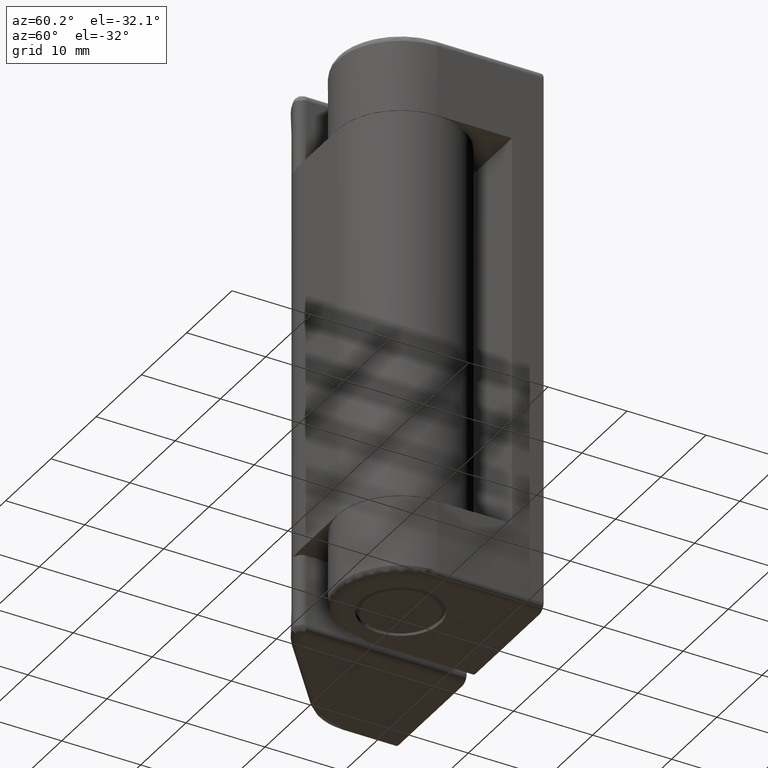
[diagram: clean part render]
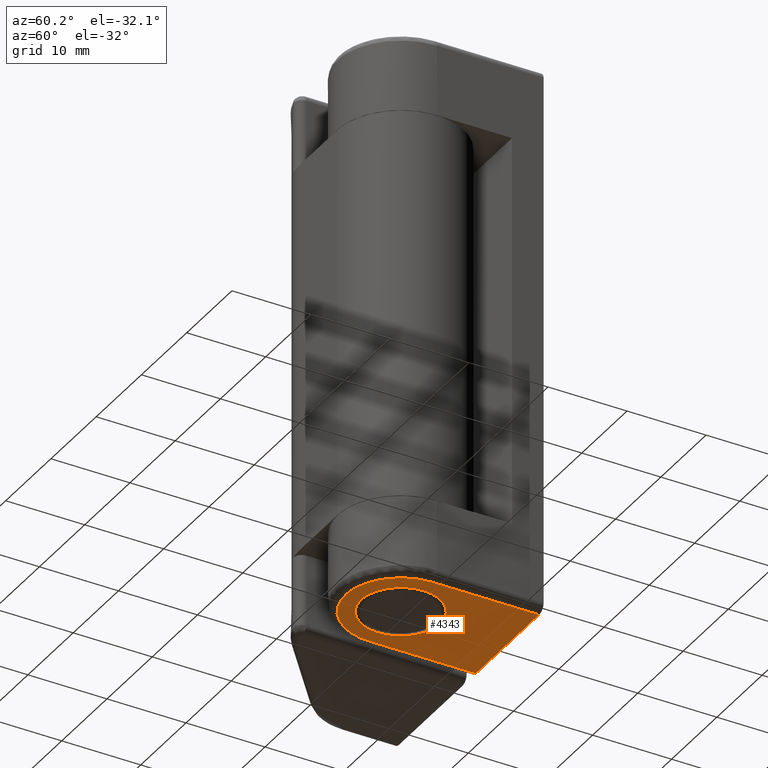
[diagram: same view with one face highlighted and labeled with its STEP entity id]
A machine part, auxiliary view. The second image highlights one B-rep face of the part: STEP entity #4343.
In plain terms, the highlighted face is a freeform B-spline surface patch.
Its self-contained STEP definition (entity closure, byte-faithful):
#3480=CARTESIAN_POINT('',(-4.680717893870489,-1.758089871991931,3.062603E-017));
#3481=VERTEX_POINT('',#3480);
#3482=CARTESIAN_POINT('',(-5.0,0.0,0.0));
#3483=VERTEX_POINT('',#3482);
#3484=CARTESIAN_POINT('',(-4.680717893870490,-1.758089871991931,3.062603E-017));
#3485=CARTESIAN_POINT('',(-4.999999999999999,-0.908036930371400,0.0));
#3486=CARTESIAN_POINT('',(-5.0,0.0,0.0));
#3494=(BOUNDED_CURVE()B_SPLINE_CURVE(2,(#3484,#3485,#3486),.UNSPECIFIED.,.F.,.U.)B_SPLINE_CURVE_WITH_KNOTS((3,3),(0.440284170896610,0.500000000000000),.UNSPECIFIED.)CURVE()GEOMETRIC_REPRESENTATION_ITEM()RATIONAL_B_SPLINE_CURVE((0.893499554632952,0.930038554399176,1.0))REPRESENTATION_ITEM(''));
#3495=EDGE_CURVE('',#3481,#3483,#3494,.T.);
#3497=CARTESIAN_POINT('',(5.0,0.0,0.0));
#3498=VERTEX_POINT('',#3497);
#3499=CARTESIAN_POINT('',(-5.0,0.0,0.0));
#3500=CARTESIAN_POINT('',(-5.000000000000001,5.000000000000001,0.0));
#3501=CARTESIAN_POINT('',(0.0,5.0,0.0));
#3502=CARTESIAN_POINT('',(5.000000000000001,5.000000000000001,0.0));
#3503=CARTESIAN_POINT('',(5.0,0.0,0.0));
#3511=(BOUNDED_CURVE()B_SPLINE_CURVE(2,(#3499,#3500,#3501,#3502,#3503),.UNSPECIFIED.,.F.,.U.)B_SPLINE_CURVE_WITH_KNOTS((3,2,3),(0.500000000000000,0.750000000000000,1.0),.UNSPECIFIED.)CURVE()GEOMETRIC_REPRESENTATION_ITEM()RATIONAL_B_SPLINE_CURVE((1.0,0.707106781186548,1.0,0.707106781186548,1.0))REPRESENTATION_ITEM(''));
#3512=EDGE_CURVE('',#3483,#3498,#3511,.T.);
#3514=CARTESIAN_POINT('',(0.305242697741204,-4.990673992105242,2.775558E-017));
#3515=VERTEX_POINT('',#3514);
#3516=CARTESIAN_POINT('',(5.0,0.0,0.0));
#3517=CARTESIAN_POINT('',(5.000000000000001,-4.703530334402096,0.0));
#3518=CARTESIAN_POINT('',(0.305242697741204,-4.990673992105242,2.775558E-017));
#3526=(BOUNDED_CURVE()B_SPLINE_CURVE(2,(#3516,#3517,#3518),.UNSPECIFIED.,.F.,.U.)B_SPLINE_CURVE_WITH_KNOTS((3,3),(0.0,0.239332962237341),.UNSPECIFIED.)CURVE()GEOMETRIC_REPRESENTATION_ITEM()RATIONAL_B_SPLINE_CURVE((1.0,0.719603993288587,0.976072041663284))REPRESENTATION_ITEM(''));
#3527=EDGE_CURVE('',#3498,#3515,#3526,.T.);
#3611=CARTESIAN_POINT('',(0.305242697741204,-4.990673992105242,2.775558E-017));
#3612=CARTESIAN_POINT('',(0.152763816560053,-5.000000000000001,0.0));
#3613=CARTESIAN_POINT('',(0.0,-5.0,0.0));
#3614=CARTESIAN_POINT('',(-3.463047978418244,-5.000000000000001,0.0));
#3615=CARTESIAN_POINT('',(-4.680717893870489,-1.758089871991932,3.062603E-017));
#3623=(BOUNDED_CURVE()B_SPLINE_CURVE(2,(#3611,#3612,#3613,#3614,#3615),.UNSPECIFIED.,.F.,.U.)B_SPLINE_CURVE_WITH_KNOTS((3,2,3),(0.239332962237341,0.250000000000000,0.440284170896610),.UNSPECIFIED.)CURVE()GEOMETRIC_REPRESENTATION_ITEM()RATIONAL_B_SPLINE_CURVE((0.976072041663284,0.987502787897961,1.0,0.777068226787371,0.893499554632952))REPRESENTATION_ITEM(''));
#3624=EDGE_CURVE('',#3515,#3481,#3623,.T.);
#3852=CARTESIAN_POINT('',(-6.999999999999800,13.500000000000000,0.0));
#3853=VERTEX_POINT('',#3852);
#3869=CARTESIAN_POINT('',(-7.0,0.0,0.0));
#3870=VERTEX_POINT('',#3869);
#3871=CARTESIAN_POINT('',(-7.0,0.0,0.0));
#3872=CARTESIAN_POINT('',(-6.999999999999800,13.500000000000000,0.0));
#3873=QUASI_UNIFORM_CURVE('',1,(#3871,#3872),.UNSPECIFIED.,.F.,.U.);
#3874=EDGE_CURVE('',#3870,#3853,#3873,.T.);
#3922=CARTESIAN_POINT('',(7.000000000000201,0.0,0.0));
#3923=VERTEX_POINT('',#3922);
#3955=CARTESIAN_POINT('',(7.000000000000201,0.0,0.0));
#3956=CARTESIAN_POINT('',(6.999999999999999,-6.999999999999999,0.0));
#3957=CARTESIAN_POINT('',(0.0,-7.0,0.0));
#3958=CARTESIAN_POINT('',(-6.999999999999999,-6.999999999999999,0.0));
#3959=CARTESIAN_POINT('',(-7.0,0.0,0.0));
#3967=(BOUNDED_CURVE()B_SPLINE_CURVE(2,(#3955,#3956,#3957,#3958,#3959),.UNSPECIFIED.,.F.,.U.)B_SPLINE_CURVE_WITH_KNOTS((3,2,3),(0.0,0.500000000000000,1.0),.UNSPECIFIED.)CURVE()GEOMETRIC_REPRESENTATION_ITEM()RATIONAL_B_SPLINE_CURVE((1.0,0.707106781186547,1.0,0.707106781186547,1.0))REPRESENTATION_ITEM(''));
#3968=EDGE_CURVE('',#3923,#3870,#3967,.T.);
#3989=CARTESIAN_POINT('',(7.000000000000201,13.500000000000000,0.0));
#3990=VERTEX_POINT('',#3989);
#4010=CARTESIAN_POINT('',(7.000000000000201,13.500000000000000,0.0));
#4011=CARTESIAN_POINT('',(7.000000000000201,0.0,0.0));
#4012=QUASI_UNIFORM_CURVE('',1,(#4010,#4011),.UNSPECIFIED.,.F.,.U.);
#4013=EDGE_CURVE('',#3990,#3923,#4012,.T.);
#4322=CARTESIAN_POINT('',(-7.699299972865293,-8.023974960266987,0.0));
#4323=CARTESIAN_POINT('',(7.699300348374756,-8.023974960266987,0.0));
#4324=CARTESIAN_POINT('',(-7.699299972865293,14.523975510119870,0.0));
#4325=CARTESIAN_POINT('',(7.699300348374756,14.523975510119870,0.0));
#4326=B_SPLINE_SURFACE_WITH_KNOTS('',1,1,((#4322,#4324),(#4323,#4325)),.UNSPECIFIED.,.F.,.F.,.U.,(2,2),(2,2),(0.0,15.398600321240050),(0.0,22.547950470386859),.UNSPECIFIED.);
#4327=ORIENTED_EDGE('',*,*,#3968,.T.);
#4328=ORIENTED_EDGE('',*,*,#3874,.T.);
#4329=CARTESIAN_POINT('',(7.000000000000201,13.500000000000000,0.0));
#4330=CARTESIAN_POINT('',(-6.999999999999800,13.500000000000000,0.0));
#4331=QUASI_UNIFORM_CURVE('',1,(#4329,#4330),.UNSPECIFIED.,.F.,.U.);
#4332=EDGE_CURVE('',#3990,#3853,#4331,.T.);
#4333=ORIENTED_EDGE('',*,*,#4332,.F.);
#4334=ORIENTED_EDGE('',*,*,#4013,.T.);
#4335=EDGE_LOOP('',(#4327,#4328,#4333,#4334));
#4336=FACE_OUTER_BOUND('',#4335,.T.);
#4337=ORIENTED_EDGE('',*,*,#3512,.F.);
#4338=ORIENTED_EDGE('',*,*,#3495,.F.);
#4339=ORIENTED_EDGE('',*,*,#3624,.F.);
#4340=ORIENTED_EDGE('',*,*,#3527,.F.);
#4341=EDGE_LOOP('',(#4337,#4338,#4339,#4340));
#4342=FACE_BOUND('',#4341,.T.);
#4343=ADVANCED_FACE('',(#4336,#4342),#4326,.F.);